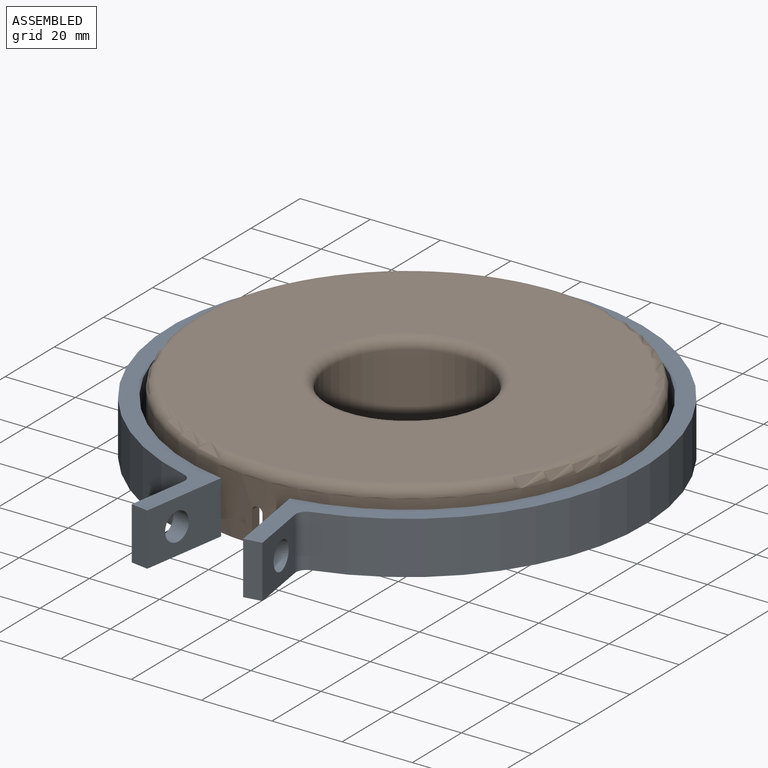
[diagram: assembled view]
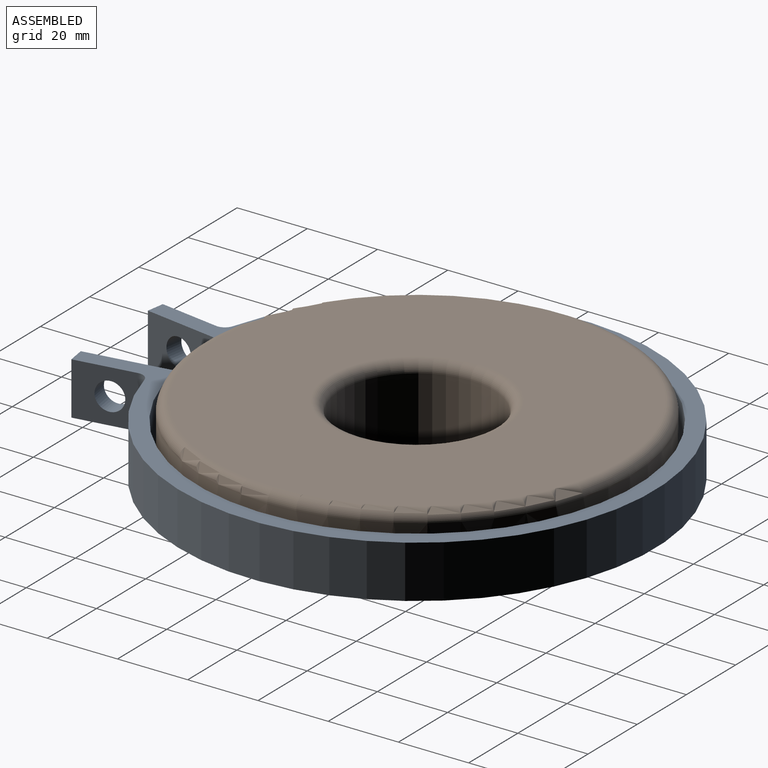
[diagram: assembled view, second angle]
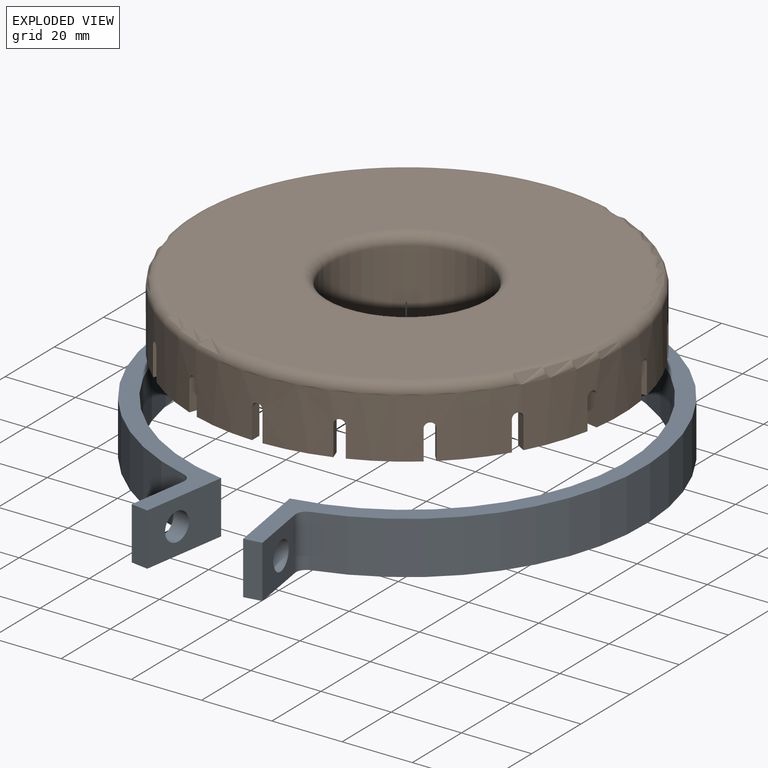
[diagram: exploded view]
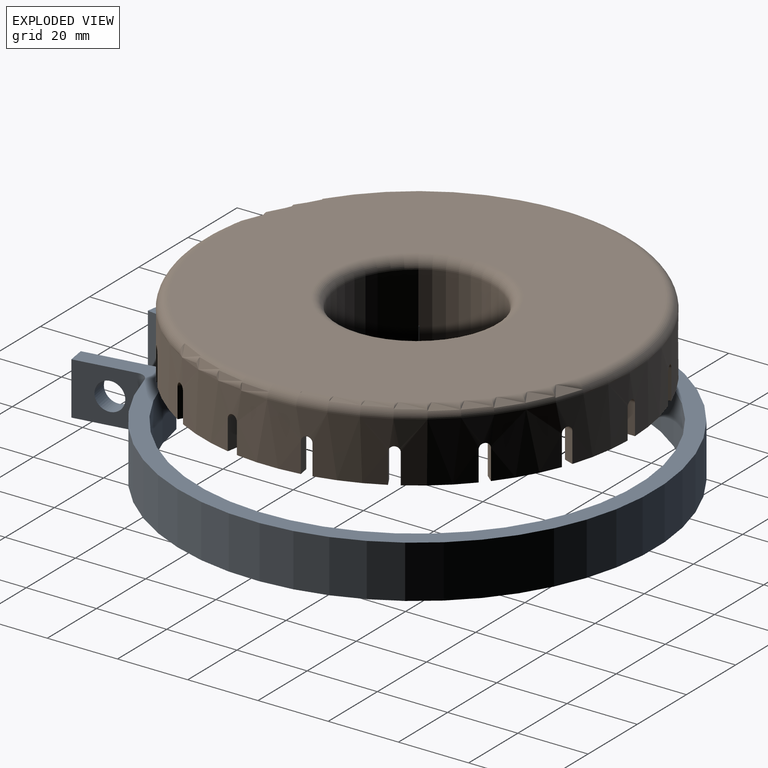
[diagram: exploded view, second angle]
ASSEMBLY  parts=2 mates=2
PART A: 14 faces, bbox 135x153.7x15 mm
  f0: cylinder r=67.5mm len=135mm, axis (0,0,-1), area 5813.4mm2, adj f4,f5,f9,f13
  f1: plane 24.51x15mm, normal (0.99,-0.16,0), area 322mm2, adj f2,f4,f5,f7,f8
  f2: cylinder r=62.5mm len=125mm, axis (0,0,-1), area 5596mm2, adj f1,f3,f4,f5
  f3: plane 24.51x15mm, normal (-0.99,-0.16,0), area 322mm2, adj f2,f4,f5,f10,f12
  f4: plane 153.74x135mm, normal (0,0,1), area 2141.7mm2, adj f0,f1,f2,f3,f6,f7,f9,f10
  f5: plane 153.74x135mm, normal (0,0,-1), area 2141.7mm2, adj f0,f1,f2,f3,f6,f7,f9,f10
  f6: plane 17.06x15mm, normal (-0.99,0.16,0), area 208.8mm2, adj f4,f5,f7,f8,f9
  f7: plane 15x4.94mm, normal (-0.16,-0.99,0), area 75mm2, adj f1,f4,f5,f6
  f8: cylinder r=4mm len=8.68mm, axis (-0.99,0.16,0), area 125.7mm2, adj f1,f6
  f9: cylinder r=3mm len=15mm, axis (0,0,-1), area 65.6mm2, adj f0,f4,f5,f6
  f10: plane 15x4.94mm, normal (0.16,-0.99,0), area 75mm2, adj f3,f4,f5,f11
  f11: plane 17.06x15mm, normal (0.99,0.16,0), area 208.8mm2, adj f4,f5,f10,f12,f13
  f12: cylinder r=4mm len=8.68mm, axis (0.99,0.16,0), area 125.7mm2, adj f3,f11
  f13: cylinder r=3mm len=15mm, axis (0,0,-1), area 65.6mm2, adj f0,f4,f5,f11
PART B: 82 faces, bbox 132.1x132.1x23 mm
  f0: cylinder r=61mm len=122mm, axis (0,0,-1), area 5993mm2, adj f2,f3,f4,f5,f6,f7,f8,f9
  f1: cylinder r=58mm len=116mm, axis (0,0,-1), area 5672.5mm2, adj f2,f3,f4,f5,f6,f7,f8,f9
  f2: plane 16.81x11.41mm, normal (0,0,-1), area 53.3mm2, adj f0,f1,f72,f74
  f3: plane 15.46x13.64mm, normal (0,0,-1), area 53.3mm2, adj f0,f1,f69,f71
  f4: plane 17.65x8.83mm, normal (0,0,-1), area 53.3mm2, adj f0,f1,f66,f68
  f5: plane 18.22x3.64mm, normal (0,0,-1), area 53.3mm2, adj f0,f1,f63,f65
  f6: plane 17.65x8.83mm, normal (0,0,-1), area 53.3mm2, adj f0,f1,f60,f62
  f7: plane 15.46x13.64mm, normal (0,0,-1), area 53.3mm2, adj f0,f1,f57,f59
  f8: plane 16.81x11.41mm, normal (0,0,-1), area 53.3mm2, adj f0,f1,f54,f56
  f9: plane 17.95x5.98mm, normal (0,0,-1), area 53.3mm2, adj f0,f1,f51,f53
  f10: plane 17.95x5.98mm, normal (0,0,-1), area 53.3mm2, adj f0,f1,f48,f50
  f11: plane 16.81x11.41mm, normal (0,0,-1), area 53.3mm2, adj f0,f1,f45,f47
  f12: plane 15.46x13.64mm, normal (0,0,-1), area 53.3mm2, adj f0,f1,f42,f44
  f13: plane 17.65x8.83mm, normal (0,0,-1), area 53.3mm2, adj f0,f1,f39,f41
  f14: plane 18.22x3.64mm, normal (0,0,-1), area 53.3mm2, adj f0,f1,f36,f38
  f15: plane 17.65x8.83mm, normal (0,0,-1), area 53.3mm2, adj f0,f1,f33,f35
  f16: plane 15.46x13.64mm, normal (0,0,-1), area 53.3mm2, adj f0,f1,f30,f32
  f17: plane 16.81x11.41mm, normal (0,0,-1), area 53.3mm2, adj f0,f1,f27,f29
  f18: plane 17.95x5.98mm, normal (0,0,-1), area 53.3mm2, adj f0,f1,f24,f26
  f19: plane 116x116mm, normal (0,0,1), area 8636.1mm2, adj f21,f80
  f20: plane 17.95x5.98mm, normal (0,0,-1), area 53.3mm2, adj f0,f1,f23,f75
  f21: torus R=58mm, axis (0,0,1), area 1773.9mm2, adj f0,f19
  f22: plane 116x116mm, normal (0,0,-1), area 7778.5mm2, adj f1,f81
  f23: plane 8.5x3mm, normal (1,0,0), area 25.5mm2, adj f0,f1,f20,f25
  f24: plane 8.5x3mm, normal (-1,0,0), area 25.5mm2, adj f0,f1,f18,f25
  f25: cylinder r=1.5mm len=3.02mm, axis (0,-1,0), area 14.1mm2, adj f0,f1,f23,f24
  f26: plane 8.5x2.82mm, normal (0.94,0.34,0), area 25.5mm2, adj f0,f1,f18,f28
  f27: plane 8.5x2.82mm, normal (-0.94,-0.34,0), area 25.5mm2, adj f0,f1,f17,f28
  f28: cylinder r=1.5mm len=3.86mm, axis (0.34,-0.94,0), area 14.1mm2, adj f0,f1,f26,f27
  f29: plane 8.5x2.3mm, normal (0.77,0.64,0), area 25.5mm2, adj f0,f1,f17,f31
  f30: plane 8.5x2.3mm, normal (-0.77,-0.64,0), area 25.5mm2, adj f0,f1,f16,f31
  f31: cylinder r=1.5mm len=4.24mm, axis (0.64,-0.77,0), area 14.1mm2, adj f0,f1,f29,f30
  f32: plane 8.5x2.6mm, normal (0.5,0.87,0), area 25.5mm2, adj f0,f1,f16,f34
  f33: plane 8.5x2.6mm, normal (-0.5,-0.87,0), area 25.5mm2, adj f0,f1,f15,f34
  f34: cylinder r=1.5mm len=4.12mm, axis (0.87,-0.5,0), area 14.1mm2, adj f0,f1,f32,f33
  f35: plane 8.5x2.96mm, normal (0.17,0.98,0), area 25.5mm2, adj f0,f1,f15,f37
  f36: plane 8.5x2.96mm, normal (-0.17,-0.98,0), area 25.5mm2, adj f0,f1,f14,f37
  f37: cylinder r=1.5mm len=3.49mm, axis (0.98,-0.17,0), area 14.1mm2, adj f0,f1,f35,f36
  f38: plane 8.5x2.96mm, normal (-0.17,0.98,0), area 25.5mm2, adj f0,f1,f14,f40
  f39: plane 8.5x2.96mm, normal (0.17,-0.98,0), area 25.5mm2, adj f0,f1,f13,f40
  f40: cylinder r=1.5mm len=3.49mm, axis (0.98,0.17,0), area 14.1mm2, adj f0,f1,f38,f39
  f41: plane 8.5x2.6mm, normal (-0.5,0.87,0), area 25.5mm2, adj f0,f1,f13,f43
  f42: plane 8.5x2.6mm, normal (0.5,-0.87,0), area 25.5mm2, adj f0,f1,f12,f43
  f43: cylinder r=1.5mm len=4.12mm, axis (0.87,0.5,0), area 14.1mm2, adj f0,f1,f41,f42
  f44: plane 8.5x2.3mm, normal (-0.77,0.64,0), area 25.5mm2, adj f0,f1,f12,f46
  f45: plane 8.5x2.3mm, normal (0.77,-0.64,0), area 25.5mm2, adj f0,f1,f11,f46
  f46: cylinder r=1.5mm len=4.24mm, axis (0.64,0.77,0), area 14.1mm2, adj f0,f1,f44,f45
  f47: plane 8.5x2.82mm, normal (-0.94,0.34,0), area 25.5mm2, adj f0,f1,f11,f49
  f48: plane 8.5x2.82mm, normal (0.94,-0.34,0), area 25.5mm2, adj f0,f1,f10,f49
  f49: cylinder r=1.5mm len=3.86mm, axis (0.34,0.94,0), area 14.1mm2, adj f0,f1,f47,f48
  f50: plane 8.5x3mm, normal (-1,0,0), area 25.5mm2, adj f0,f1,f10,f52
  f51: plane 8.5x3mm, normal (1,0,0), area 25.5mm2, adj f0,f1,f9,f52
  f52: cylinder r=1.5mm len=3.02mm, axis (0,1,0), area 14.1mm2, adj f0,f1,f50,f51
  f53: plane 8.5x2.82mm, normal (-0.94,-0.34,0), area 25.5mm2, adj f0,f1,f9,f55
  f54: plane 8.5x2.82mm, normal (0.94,0.34,0), area 25.5mm2, adj f0,f1,f8,f55
  f55: cylinder r=1.5mm len=3.86mm, axis (-0.34,0.94,0), area 14.1mm2, adj f0,f1,f53,f54
  f56: plane 8.5x2.3mm, normal (-0.77,-0.64,0), area 25.5mm2, adj f0,f1,f8,f58
  f57: plane 8.5x2.3mm, normal (0.77,0.64,0), area 25.5mm2, adj f0,f1,f7,f58
  f58: cylinder r=1.5mm len=4.24mm, axis (-0.64,0.77,0), area 14.1mm2, adj f0,f1,f56,f57
  f59: plane 8.5x2.6mm, normal (-0.5,-0.87,0), area 25.5mm2, adj f0,f1,f7,f61
  f60: plane 8.5x2.6mm, normal (0.5,0.87,0), area 25.5mm2, adj f0,f1,f6,f61
  f61: cylinder r=1.5mm len=4.12mm, axis (-0.87,0.5,0), area 14.1mm2, adj f0,f1,f59,f60
  f62: plane 8.5x2.96mm, normal (-0.17,-0.98,0), area 25.5mm2, adj f0,f1,f6,f64
  f63: plane 8.5x2.96mm, normal (0.17,0.98,0), area 25.5mm2, adj f0,f1,f5,f64
  f64: cylinder r=1.5mm len=3.49mm, axis (-0.98,0.17,0), area 14.1mm2, adj f0,f1,f62,f63
  f65: plane 8.5x2.96mm, normal (0.17,-0.98,0), area 25.5mm2, adj f0,f1,f5,f67
  f66: plane 8.5x2.96mm, normal (-0.17,0.98,0), area 25.5mm2, adj f0,f1,f4,f67
  f67: cylinder r=1.5mm len=3.49mm, axis (-0.98,-0.17,0), area 14.1mm2, adj f0,f1,f65,f66
  f68: plane 8.5x2.6mm, normal (0.5,-0.87,0), area 25.5mm2, adj f0,f1,f4,f70
  f69: plane 8.5x2.6mm, normal (-0.5,0.87,0), area 25.5mm2, adj f0,f1,f3,f70
  f70: cylinder r=1.5mm len=4.12mm, axis (-0.87,-0.5,0), area 14.1mm2, adj f0,f1,f68,f69
  f71: plane 8.5x2.3mm, normal (0.77,-0.64,0), area 25.5mm2, adj f0,f1,f3,f73
  f72: plane 8.5x2.3mm, normal (-0.77,0.64,0), area 25.5mm2, adj f0,f1,f2,f73
  f73: cylinder r=1.5mm len=4.24mm, axis (-0.64,-0.77,0), area 14.1mm2, adj f0,f1,f71,f72
  f74: plane 8.5x2.82mm, normal (0.94,-0.34,0), area 25.5mm2, adj f0,f1,f2,f76
  f75: plane 8.5x2.82mm, normal (-0.94,0.34,0), area 25.5mm2, adj f0,f1,f20,f76
  f76: cylinder r=1.5mm len=3.86mm, axis (-0.34,-0.94,0), area 14.1mm2, adj f0,f1,f74,f75
  f77: cylinder r=21.8mm len=43.6mm, axis (0,0,1), area 2739.5mm2, adj f79,f80
  f78: cylinder r=26.8mm len=53.6mm, axis (0,0,1), area 2862.6mm2, adj f79,f81
  f79: plane 53.6x53.6mm, normal (0,0,-1), area 763.4mm2, adj f77,f78
  f80: torus R=24.8mm, axis (0,0,1), area 677.7mm2, adj f19,f77
  f81: torus R=29.8mm, axis (0,0,1), area 825.8mm2, adj f22,f78
PLACE A t=(-30.87,7.71,8.58)mm
PLACE B t=(-30.87,7.71,8.58)mm
MATE planar A.f0 <-> B.f5  axis (0,0,-1) through (-30.87,7.71,8.58)mm
MATE cylindrical A.f2 <-> B.f78  axis (0,0,-1) through (-30.87,7.71,16.08)mm
